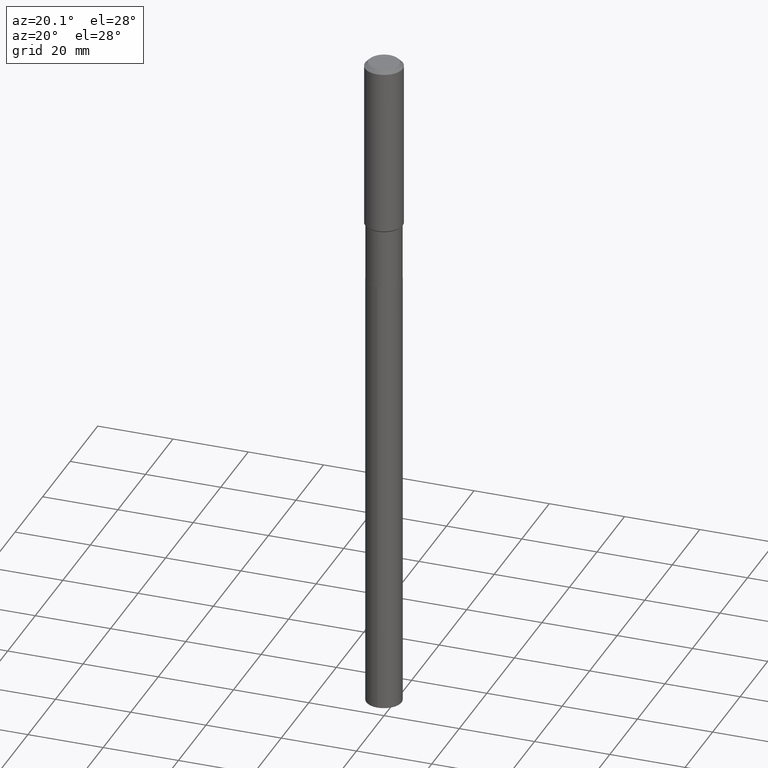
[diagram: clean part render]
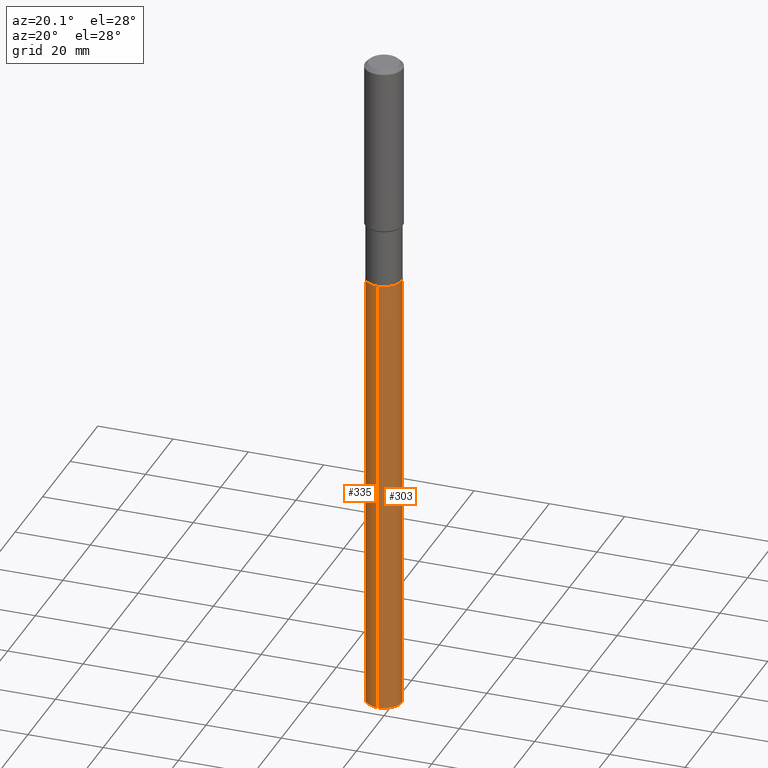
[diagram: same view with one multi-face feature highlighted, each face labeled with its STEP entity id]
A machine part, auxiliary view. The highlighted faces form ONE feature: a constant-radius fillet chain: 2 tangent blend faces with common blend radius 4.6736 mm. The faces share edges in the B-rep.
Their STEP definitions:
[1] entity #303 (Cylinder):
#12 = CARTESIAN_POINT ( 'NONE',  ( -1.284865132694099423E-15, -0.1840000000000246994, -7.092520472486850025 ) ) ;
#20 = DIRECTION ( 'NONE',  ( -2.445489705462467392E-29, 3.491451409888495011E-15, 1.000000000000000000 ) ) ;
#30 = EDGE_CURVE ( 'NONE', #274, #160, #316, .T. ) ;
#45 = AXIS2_PLACEMENT_3D ( 'NONE', #184, #480, #474 ) ;
#55 = CARTESIAN_POINT ( 'NONE',  ( 5.874016072456697244E-29, -8.386538175901234466E-15, -2.401999999999999691 ) ) ;
#60 = DIRECTION ( 'NONE',  ( -6.982962677686265133E-15, -1.000000000000000000, 2.969399993113329585E-15 ) ) ;
#61 = CARTESIAN_POINT ( 'NONE',  ( 1.307398633798642893E-15, 0.1839999999999916147, -2.402000000000000135 ) ) ;
#63 = LINE ( 'NONE', #470, #77 ) ;
#77 = VECTOR ( 'NONE', #407, 39.37007874015748143 ) ;
#82 = ORIENTED_EDGE ( 'NONE', *, *, #447, .T. ) ;
#106 = ORIENTED_EDGE ( 'NONE', *, *, #405, .F. ) ;
#124 = CARTESIAN_POINT ( 'NONE',  ( 5.874016072456697244E-29, -8.386538175901234466E-15, -2.401999999999999691 ) ) ;
#129 = EDGE_LOOP ( 'NONE', ( #82, #311, #300, #106 ) ) ;
#131 = DIRECTION ( 'NONE',  ( -2.445489705462467392E-29, 3.491451409888495011E-15, 1.000000000000000000 ) ) ;
#132 = EDGE_CURVE ( 'NONE', #309, #160, #134, .T. ) ;
#134 = LINE ( 'NONE', #61, #298 ) ;
#148 = AXIS2_PLACEMENT_3D ( 'NONE', #55, #131, #292 ) ;
#160 = VERTEX_POINT ( 'NONE', #408 ) ;
#172 = CARTESIAN_POINT ( 'NONE',  ( -1.284865132694214202E-15, -0.1840000000000084068, -2.401999999999999247 ) ) ;
#184 = CARTESIAN_POINT ( 'NONE',  ( 1.734463560118424008E-28, -2.476326249267630010E-14, -7.092520472486850913 ) ) ;
#197 = VERTEX_POINT ( 'NONE', #12 ) ;
#274 = VERTEX_POINT ( 'NONE', #172 ) ;
#292 = DIRECTION ( 'NONE',  ( -6.982962677686265133E-15, -1.000000000000000000, 2.969399993113329585E-15 ) ) ;
#298 = VECTOR ( 'NONE', #20, 39.37007874015748143 ) ;
#300 = ORIENTED_EDGE ( 'NONE', *, *, #30, .F. ) ;
#303 = ADVANCED_FACE ( 'NONE', ( #400 ), #458, .T. ) ;
#309 = VERTEX_POINT ( 'NONE', #387 ) ;
#311 = ORIENTED_EDGE ( 'NONE', *, *, #132, .T. ) ;
#316 = CIRCLE ( 'NONE', #148, 0.1839999999999999969 ) ;
#347 = CIRCLE ( 'NONE', #45, 0.1839999999999999969 ) ;
#352 = DIRECTION ( 'NONE',  ( -2.445489705462467392E-29, 3.491451409888495011E-15, 1.000000000000000000 ) ) ;
#387 = CARTESIAN_POINT ( 'NONE',  ( 1.307398633798757278E-15, 0.1839999999999752389, -7.092520472486851801 ) ) ;
#400 = FACE_OUTER_BOUND ( 'NONE', #129, .T. ) ;
#405 = EDGE_CURVE ( 'NONE', #197, #274, #63, .T. ) ;
#407 = DIRECTION ( 'NONE',  ( -2.445489705462467392E-29, 3.491451409888495011E-15, 1.000000000000000000 ) ) ;
#408 = CARTESIAN_POINT ( 'NONE',  ( 1.307398633798758658E-15, 0.1839999999999916147, -2.402000000000000135 ) ) ;
#447 = EDGE_CURVE ( 'NONE', #197, #309, #347, .T. ) ;
#458 = CYLINDRICAL_SURFACE ( 'NONE', #471, 0.1839999999999999969 ) ;
#470 = CARTESIAN_POINT ( 'NONE',  ( -1.284865132694214202E-15, -0.1840000000000084068, -2.401999999999999247 ) ) ;
#471 = AXIS2_PLACEMENT_3D ( 'NONE', #124, #352, #60 ) ;
#474 = DIRECTION ( 'NONE',  ( -6.982962677686265133E-15, -1.000000000000000000, 5.938799986226659171E-15 ) ) ;
#480 = DIRECTION ( 'NONE',  ( -2.445489705462467392E-29, 3.491451409888495011E-15, 1.000000000000000000 ) ) ;
[2] entity #335 (Cylinder):
#12 = CARTESIAN_POINT ( 'NONE',  ( -1.284865132694099423E-15, -0.1840000000000246994, -7.092520472486850025 ) ) ;
#20 = DIRECTION ( 'NONE',  ( -2.445489705462467392E-29, 3.491451409888495011E-15, 1.000000000000000000 ) ) ;
#25 = CARTESIAN_POINT ( 'NONE',  ( 1.734463560118424008E-28, -2.476326249267630010E-14, -7.092520472486850913 ) ) ;
#41 = ORIENTED_EDGE ( 'NONE', *, *, #132, .F. ) ;
#53 = ORIENTED_EDGE ( 'NONE', *, *, #80, .T. ) ;
#61 = CARTESIAN_POINT ( 'NONE',  ( 1.307398633798642893E-15, 0.1839999999999916147, -2.402000000000000135 ) ) ;
#63 = LINE ( 'NONE', #470, #77 ) ;
#74 = EDGE_LOOP ( 'NONE', ( #41, #53, #111, #383 ) ) ;
#77 = VECTOR ( 'NONE', #407, 39.37007874015748143 ) ;
#80 = EDGE_CURVE ( 'NONE', #309, #197, #436, .T. ) ;
#111 = ORIENTED_EDGE ( 'NONE', *, *, #405, .T. ) ;
#130 = FACE_OUTER_BOUND ( 'NONE', #74, .T. ) ;
#132 = EDGE_CURVE ( 'NONE', #309, #160, #134, .T. ) ;
#134 = LINE ( 'NONE', #61, #298 ) ;
#136 = DIRECTION ( 'NONE',  ( -6.982962677686265133E-15, -1.000000000000000000, 2.969399993113329585E-15 ) ) ;
#160 = VERTEX_POINT ( 'NONE', #408 ) ;
#172 = CARTESIAN_POINT ( 'NONE',  ( -1.284865132694214202E-15, -0.1840000000000084068, -2.401999999999999247 ) ) ;
#185 = AXIS2_PLACEMENT_3D ( 'NONE', #25, #404, #210 ) ;
#186 = CIRCLE ( 'NONE', #250, 0.1839999999999999969 ) ;
#197 = VERTEX_POINT ( 'NONE', #12 ) ;
#210 = DIRECTION ( 'NONE',  ( -6.982962677686265133E-15, -1.000000000000000000, 5.938799986226659171E-15 ) ) ;
#220 = CARTESIAN_POINT ( 'NONE',  ( 5.874016072456697244E-29, -8.386538175901234466E-15, -2.401999999999999691 ) ) ;
#239 = AXIS2_PLACEMENT_3D ( 'NONE', #285, #432, #442 ) ;
#250 = AXIS2_PLACEMENT_3D ( 'NONE', #220, #368, #136 ) ;
#274 = VERTEX_POINT ( 'NONE', #172 ) ;
#285 = CARTESIAN_POINT ( 'NONE',  ( 5.874016072456697244E-29, -8.386538175901234466E-15, -2.401999999999999691 ) ) ;
#298 = VECTOR ( 'NONE', #20, 39.37007874015748143 ) ;
#309 = VERTEX_POINT ( 'NONE', #387 ) ;
#335 = ADVANCED_FACE ( 'NONE', ( #130 ), #428, .T. ) ;
#368 = DIRECTION ( 'NONE',  ( -2.445489705462467392E-29, 3.491451409888495011E-15, 1.000000000000000000 ) ) ;
#383 = ORIENTED_EDGE ( 'NONE', *, *, #433, .F. ) ;
#387 = CARTESIAN_POINT ( 'NONE',  ( 1.307398633798757278E-15, 0.1839999999999752389, -7.092520472486851801 ) ) ;
#404 = DIRECTION ( 'NONE',  ( -2.445489705462467392E-29, 3.491451409888495011E-15, 1.000000000000000000 ) ) ;
#405 = EDGE_CURVE ( 'NONE', #197, #274, #63, .T. ) ;
#407 = DIRECTION ( 'NONE',  ( -2.445489705462467392E-29, 3.491451409888495011E-15, 1.000000000000000000 ) ) ;
#408 = CARTESIAN_POINT ( 'NONE',  ( 1.307398633798758658E-15, 0.1839999999999916147, -2.402000000000000135 ) ) ;
#428 = CYLINDRICAL_SURFACE ( 'NONE', #239, 0.1839999999999999969 ) ;
#432 = DIRECTION ( 'NONE',  ( -2.445489705462467392E-29, 3.491451409888495011E-15, 1.000000000000000000 ) ) ;
#433 = EDGE_CURVE ( 'NONE', #160, #274, #186, .T. ) ;
#436 = CIRCLE ( 'NONE', #185, 0.1839999999999999969 ) ;
#442 = DIRECTION ( 'NONE',  ( -6.982962677686265133E-15, -1.000000000000000000, 2.969399993113329585E-15 ) ) ;
#470 = CARTESIAN_POINT ( 'NONE',  ( -1.284865132694214202E-15, -0.1840000000000084068, -2.401999999999999247 ) ) ;